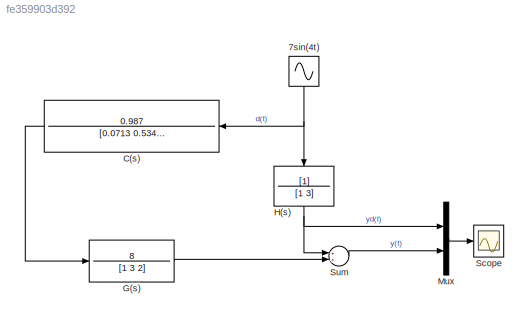
MODEL slx_fe359903d392
KIND model
CONFIG AbsTol = auto
CONFIG EnableMultiTasking = on
CONFIG FixedStep = 1e-3
CONFIG MaxStep = auto
CONFIG MinStep = auto
CONFIG RelTol = 1e-3
CONFIG SampleTimeConstraint = Unconstrained
CONFIG Solver = FixedStepAuto
CONFIG SolverName = FixedStepAuto
CONFIG StartTime = 0.0
CONFIG StopTime = 10.0
BLOCK [Sin] 7sin(4t)
  Amplitude = 7
  Frequency = 4
  Ports = [0, 1]
  SampleTime = 0
BLOCK [TransferFcn] C(s)
  Denominator = [0.0713 0.5340 1]
  Numerator = 0.987
BLOCK [TransferFcn] G(s)
  Denominator = [1 3 2]
  Numerator = 8
BLOCK [TransferFcn] H(s)
  Denominator = [1 3]
BLOCK [Mux] Mux
  DisplayOption = bar
  Inputs = 2
  Ports = [2, 1]
BLOCK [Scope] Scope
  Floating = off
  NumInputPorts = 1
  Ports = [1]
  ScopeSpecificationString = Simulink.scopes.TimeScopeBlockCfg('CurrentConfiguration', extmgr.ConfigurationSet(extmgr.Configuration('Core','General UI',true,'FigureColor',[1 1 1]),extmgr.Configuration('Core','Source UI',true),extmgr.Configuration('Sources','WiredSimulink',true),extmgr.Configuration('Visuals','Time Domain',true,'SerializedDisplays',{struct('MinYLimReal','-1.9847','MaxYLimReal','3.86231','YLabelReal','','MinYLi...<+1662ch>
BLOCK [Sum] Sum
  Ports = [2, 1]
NET 7sin(4t):1 -> C(s):1, H(s):1
LINE C(s):1 -> G(s):1
LINE G(s):1 -> Sum:2
NET H(s):1 -> Mux:1, Sum:1
LINE Mux:1 -> Scope:1
LINE Sum:1 -> Mux:2
note: NET lines group one-source signal fan-out (src -> all destinations, sorted); 1:1 wires keep LINE
